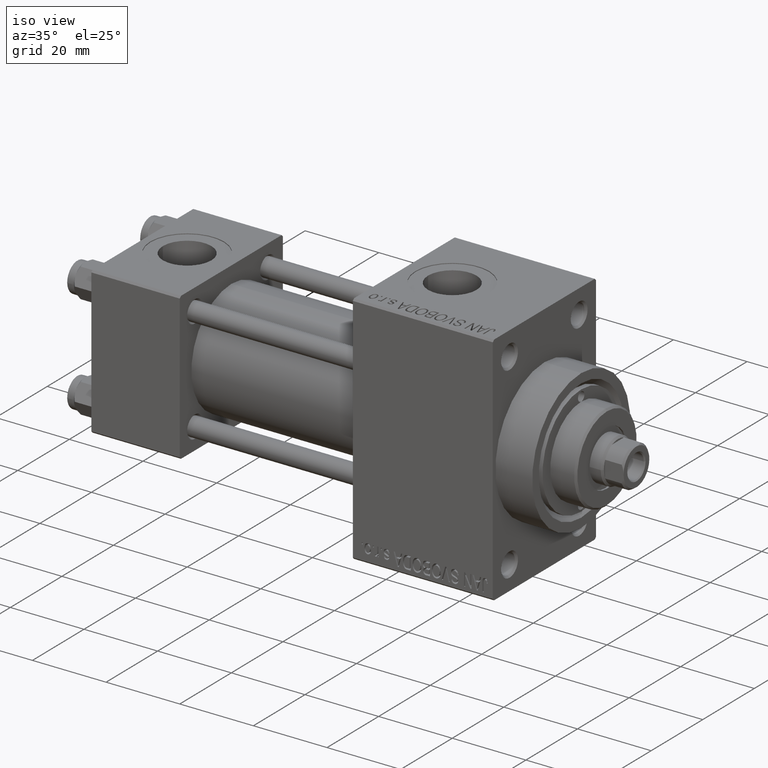
[diagram: clean part render]
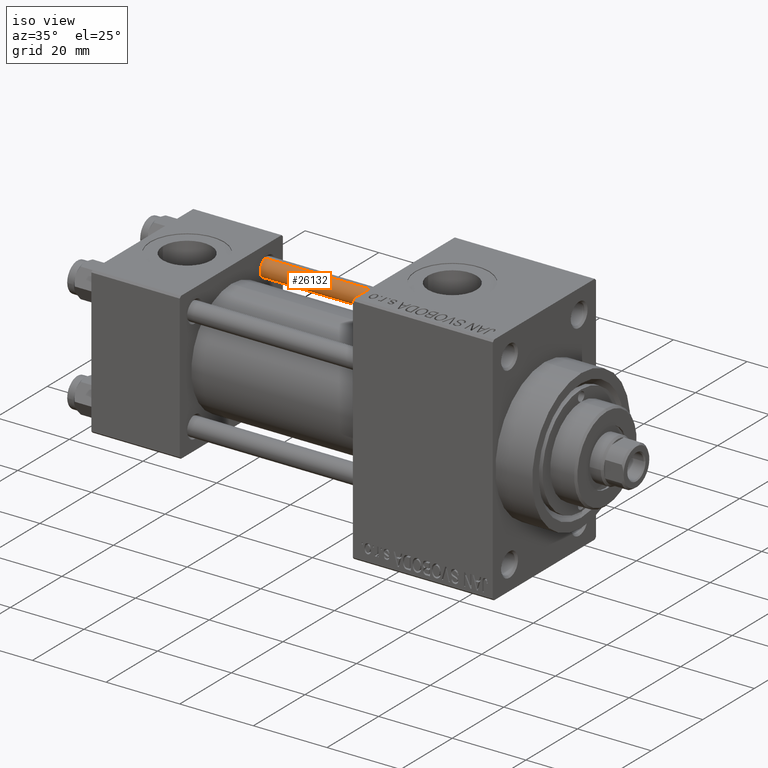
[diagram: same view with one face highlighted and labeled with its STEP entity id]
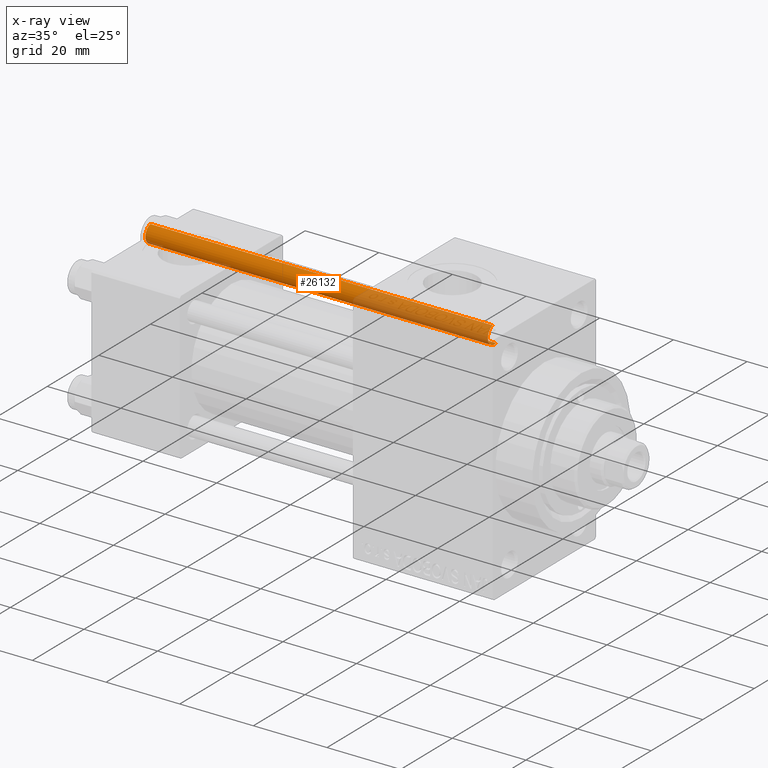
[diagram: x-ray of the same camera — body ghosted, the highlighted face saturated]
A machine part, iso view. The second image highlights one B-rep face of the part: STEP entity #26132.
The next image is the same camera in x-ray: the body ghosted, the highlighted face saturated — about 39% of this face is hidden behind the body in this view.
In plain terms, the highlighted cylindrical surface (edge-blend (fillet) strip) has radius 2.5 mm, axis along (-1, -0, 0).
Its self-contained STEP definition (entity closure, byte-faithful):
#357 = CARTESIAN_POINT ( 'NONE',  ( -2.500000000000000000, 0.000000000000000000, 0.5000000000000004441 ) ) ;
#1056 = EDGE_LOOP ( 'NONE', ( #1712, #1584, #31197, #16105 ) ) ;
#1584 = ORIENTED_EDGE ( 'NONE', *, *, #16847, .T. ) ;
#1590 = DIRECTION ( 'NONE',  ( 1.000000000000000000, 0.000000000000000000, 0.000000000000000000 ) ) ;
#1712 = ORIENTED_EDGE ( 'NONE', *, *, #41544, .F. ) ;
#3314 = CARTESIAN_POINT ( 'NONE',  ( 0.000000000000000000, 0.000000000000000000, 94.00000000000000000 ) ) ;
#3556 = DIRECTION ( 'NONE',  ( -1.000000000000000000, 0.000000000000000000, 0.000000000000000000 ) ) ;
#5415 = VECTOR ( 'NONE', #6295, 1000.000000000000000 ) ;
#6295 = DIRECTION ( 'NONE',  ( -0.000000000000000000, -0.000000000000000000, -1.000000000000000000 ) ) ;
#6543 = LINE ( 'NONE', #17930, #5415 ) ;
#10187 = AXIS2_PLACEMENT_3D ( 'NONE', #3314, #19139, #3556 ) ;
#10245 = DIRECTION ( 'NONE',  ( 1.000000000000000000, 0.000000000000000000, 0.000000000000000000 ) ) ;
#10490 = DIRECTION ( 'NONE',  ( 0.000000000000000000, 0.000000000000000000, -1.000000000000000000 ) ) ;
#12391 = EDGE_CURVE ( 'NONE', #21973, #22689, #6543, .T. ) ;
#13119 = CARTESIAN_POINT ( 'NONE',  ( 2.500000000000000000, 3.061616997868383141E-16, 93.50000000000001421 ) ) ;
#16105 = ORIENTED_EDGE ( 'NONE', *, *, #35630, .T. ) ;
#16847 = EDGE_CURVE ( 'NONE', #44597, #21973, #41923, .T. ) ;
#17638 = AXIS2_PLACEMENT_3D ( 'NONE', #47628, #35739, #1590 ) ;
#17930 = CARTESIAN_POINT ( 'NONE',  ( -2.500000000000000000, 0.000000000000000000, 94.00000000000000000 ) ) ;
#18276 = LINE ( 'NONE', #36359, #35899 ) ;
#19139 = DIRECTION ( 'NONE',  ( -0.000000000000000000, -0.000000000000000000, -1.000000000000000000 ) ) ;
#21373 = CARTESIAN_POINT ( 'NONE',  ( 2.500000000000000000, 3.061616997868383141E-16, 0.5000000000000004441 ) ) ;
#21973 = VERTEX_POINT ( 'NONE', #34983 ) ;
#22689 = VERTEX_POINT ( 'NONE', #357 ) ;
#24611 = CARTESIAN_POINT ( 'NONE',  ( 0.000000000000000000, 0.000000000000000000, 93.50000000000001421 ) ) ;
#25360 = FACE_OUTER_BOUND ( 'NONE', #1056, .T. ) ;
#26132 = ADVANCED_FACE ( 'NONE', ( #25360 ), #37466, .T. ) ;
#31197 = ORIENTED_EDGE ( 'NONE', *, *, #12391, .T. ) ;
#34230 = CIRCLE ( 'NONE', #17638, 2.500000000000000000 ) ;
#34983 = CARTESIAN_POINT ( 'NONE',  ( -2.500000000000000000, 0.000000000000000000, 93.50000000000001421 ) ) ;
#35630 = EDGE_CURVE ( 'NONE', #22689, #40999, #34230, .T. ) ;
#35739 = DIRECTION ( 'NONE',  ( -0.000000000000000000, -0.000000000000000000, 1.000000000000000000 ) ) ;
#35899 = VECTOR ( 'NONE', #48487, 1000.000000000000000 ) ;
#36359 = CARTESIAN_POINT ( 'NONE',  ( 2.500000000000000000, 3.061616997868383141E-16, 94.00000000000000000 ) ) ;
#37466 = CYLINDRICAL_SURFACE ( 'NONE', #10187, 2.500000000000000000 ) ;
#39543 = AXIS2_PLACEMENT_3D ( 'NONE', #24611, #10490, #10245 ) ;
#40999 = VERTEX_POINT ( 'NONE', #21373 ) ;
#41544 = EDGE_CURVE ( 'NONE', #44597, #40999, #18276, .T. ) ;
#41923 = CIRCLE ( 'NONE', #39543, 2.500000000000000000 ) ;
#44597 = VERTEX_POINT ( 'NONE', #13119 ) ;
#47628 = CARTESIAN_POINT ( 'NONE',  ( 0.000000000000000000, 0.000000000000000000, 0.5000000000000004441 ) ) ;
#48487 = DIRECTION ( 'NONE',  ( -0.000000000000000000, -0.000000000000000000, -1.000000000000000000 ) ) ;